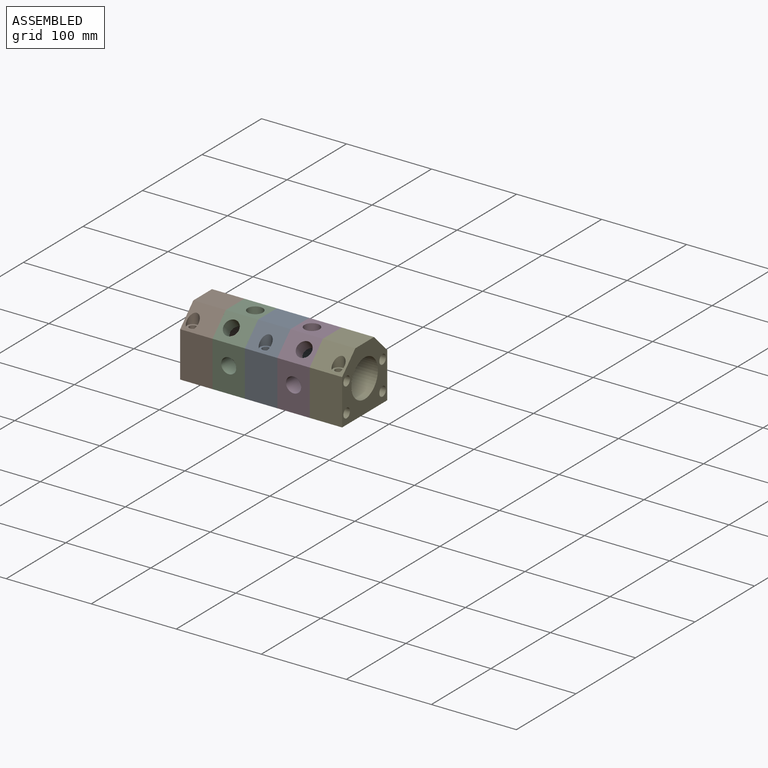
[diagram: assembled view]
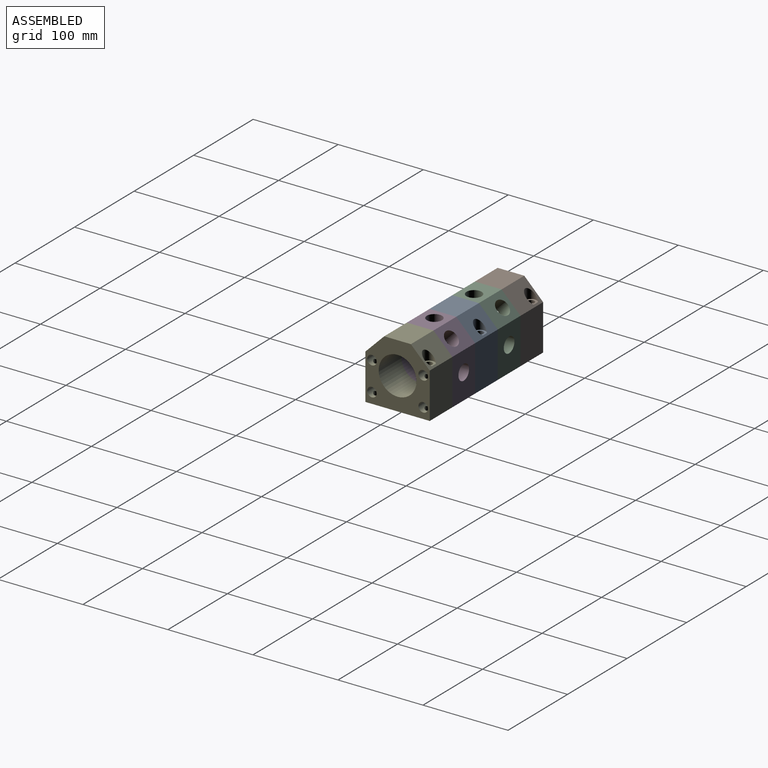
[diagram: assembled view, second angle]
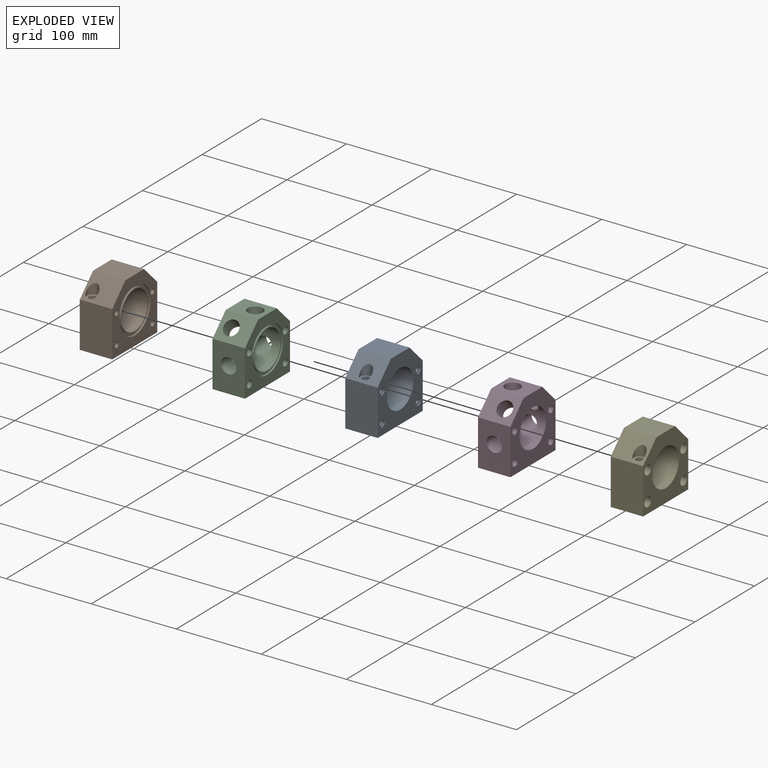
[diagram: exploded view]
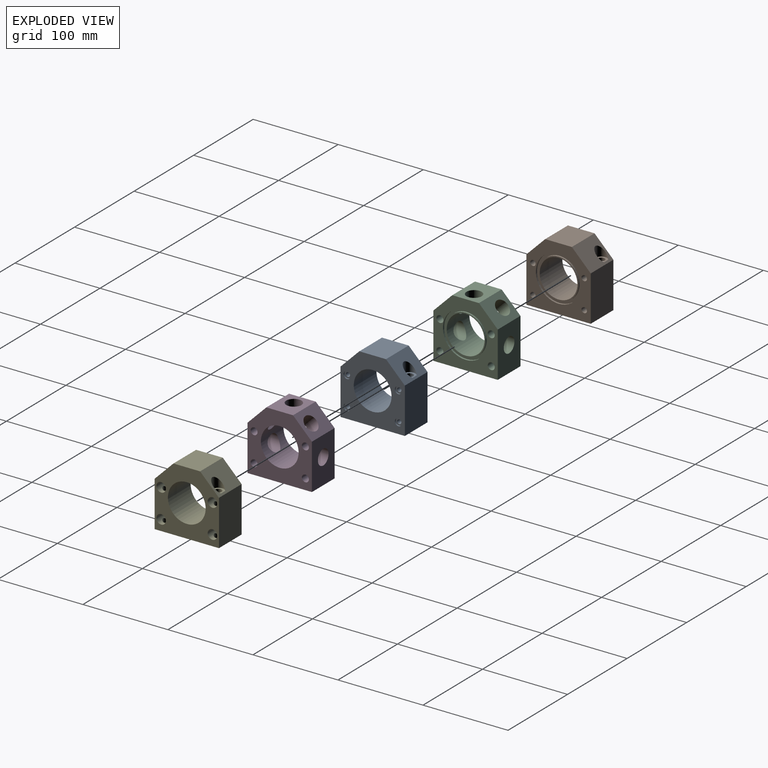
[diagram: exploded view, second angle]
ASSEMBLY  parts=5 mates=4
PART A: 39 faces, bbox 38.1x75.7x75.7 mm
  f0: cylinder r=2.5mm len=14.07mm, axis (1,0,0), area 214.3mm2, adj f17,f33
  f1: cylinder r=2.5mm len=14.07mm, axis (1,0,0), area 214.3mm2, adj f19,f36
  f2: cylinder r=2.5mm len=14.07mm, axis (1,0,0), area 214.3mm2, adj f21,f36
  f3: cylinder r=2.5mm len=14.07mm, axis (1,0,0), area 214.3mm2, adj f23,f33
  f4: cylinder r=2.5mm len=14.07mm, axis (-1,0,0), area 214.3mm2, adj f25,f36
  f5: cylinder r=2.5mm len=14.07mm, axis (-1,0,0), area 214.3mm2, adj f27,f36
  f6: cylinder r=2.5mm len=14.07mm, axis (-1,0,0), area 214.3mm2, adj f29,f33
  f7: cylinder r=2.5mm len=14.07mm, axis (-1,0,0), area 214.3mm2, adj f31,f33
  f8: plane 38.1x31.35mm, normal (0,0,1), area 1194.5mm2, adj f9,f13,f15,f16
  f9: plane 38.1x22.17mm, normal (0,-0.71,0.71), area 998.2mm2, adj f8,f10,f15,f16,f34,f35
  f10: plane 53.52x38.1mm, normal (0,-1,0), area 2039.2mm2, adj f9,f11,f15,f16
  f11: plane 75.69x38.1mm, normal (0,0,-1), area 2772.2mm2, adj f10,f12,f15,f16,f33,f36
  f12: plane 53.52x38.1mm, normal (0,1,0), area 2039.2mm2, adj f11,f13,f15,f16
  f13: plane 38.1x22.17mm, normal (0,0.71,0.71), area 998.2mm2, adj f8,f12,f15,f16,f37,f38
  f14: cylinder r=22.23mm len=44.45mm, axis (-1,0,0), area 5320.4mm2, adj f15,f16
  f15: plane 75.69x75.69mm, normal (1,0,0), area 3474.5mm2, adj f8,f9,f10,f11,f12,f13,f14,f18
  f16: plane 75.69x75.69mm, normal (-1,0,0), area 3474.5mm2, adj f8,f9,f10,f11,f12,f13,f14,f26
  f17: plane 8.2x8.2mm, normal (1,0,0), area 33.2mm2, adj f0,f18
  f18: cylinder r=4.1mm len=8.2mm, axis (1,0,0), area 40.9mm2, adj f15,f17
  f19: plane 8.2x8.2mm, normal (1,0,0), area 33.2mm2, adj f1,f20
  f20: cylinder r=4.1mm len=8.2mm, axis (1,0,0), area 40.9mm2, adj f15,f19
  f21: plane 8.2x8.2mm, normal (1,0,0), area 33.2mm2, adj f2,f22
  f22: cylinder r=4.1mm len=8.2mm, axis (1,0,0), area 40.9mm2, adj f15,f21
  f23: plane 8.2x8.2mm, normal (1,0,0), area 33.2mm2, adj f3,f24
  f24: cylinder r=4.1mm len=8.2mm, axis (1,0,0), area 40.9mm2, adj f15,f23
  f25: plane 8.2x8.2mm, normal (-1,0,0), area 33.2mm2, adj f4,f26
  f26: cylinder r=4.1mm len=8.2mm, axis (-1,0,0), area 40.9mm2, adj f16,f25
  f27: plane 8.2x8.2mm, normal (-1,0,0), area 33.2mm2, adj f5,f28
  f28: cylinder r=4.1mm len=8.2mm, axis (-1,0,0), area 40.9mm2, adj f16,f27
  f29: plane 8.2x8.2mm, normal (-1,0,0), area 33.2mm2, adj f6,f30
  f30: cylinder r=4.1mm len=8.2mm, axis (-1,0,0), area 40.9mm2, adj f16,f29
  f31: plane 8.2x8.2mm, normal (-1,0,0), area 33.2mm2, adj f7,f32
  f32: cylinder r=4.1mm len=8.2mm, axis (-1,0,0), area 40.9mm2, adj f16,f31
  f33: cylinder r=4.22mm len=55.37mm, axis (0,0,1), area 1384.5mm2, adj f0,f3,f6,f7,f11,f34
  f34: plane 13.49x12.58mm, normal (0,0,1), area 83mm2, adj f9,f33,f35
  f35: cylinder r=6.75mm len=13.49mm, axis (0,0,1), area 251.6mm2, adj f9,f34
  f36: cylinder r=4.22mm len=55.37mm, axis (0,0,1), area 1384.5mm2, adj f1,f2,f4,f5,f11,f37
  f37: plane 13.49x12.58mm, normal (0,0,1), area 83mm2, adj f13,f36,f38
  f38: cylinder r=6.75mm len=13.49mm, axis (0,0,1), area 251.6mm2, adj f13,f37
PART B: 35 faces, bbox 38.1x75.7x75.7 mm
  f0: cylinder r=5.56mm len=25.4mm, axis (-1,0,0), area 764.4mm2, adj f13,f15,f26,f32
  f1: cylinder r=5.56mm len=25.4mm, axis (-1,0,0), area 764.4mm2, adj f13,f17,f28,f29
  f2: cylinder r=5.56mm len=25.4mm, axis (-1,0,0), area 764.4mm2, adj f13,f19,f27,f28
  f3: cylinder r=5.56mm len=25.4mm, axis (-1,0,0), area 764.4mm2, adj f13,f21,f25,f26
  f4: plane 46.99x46.99mm, normal (1,0,0), area 182.4mm2, adj f11,f22
  f5: plane 38.1x31.35mm, normal (0,0,1), area 1194.5mm2, adj f6,f10,f12,f13
  f6: plane 38.1x22.17mm, normal (0,-0.71,0.71), area 998.2mm2, adj f5,f7,f12,f13,f30,f31
  f7: plane 53.52x38.1mm, normal (0,-1,0), area 2039.2mm2, adj f6,f8,f12,f13
  f8: plane 75.69x38.1mm, normal (0,0,-1), area 2772.2mm2, adj f7,f9,f12,f13,f25,f27
  f9: plane 53.52x38.1mm, normal (0,1,0), area 2039.2mm2, adj f8,f10,f12,f13
  f10: plane 38.1x22.17mm, normal (0,0.71,0.71), area 998.2mm2, adj f5,f9,f12,f13,f33,f34
  f11: cylinder r=22.23mm len=44.45mm, axis (-1,0,0), area 5320.4mm2, adj f4,f13
  f12: plane 75.69x75.69mm, normal (1,0,0), area 2876.5mm2, adj f5,f6,f7,f8,f9,f10,f14,f16
  f13: plane 75.69x75.69mm, normal (-1,0,0), area 3298mm2, adj f0,f1,f2,f3,f5,f6,f7,f8
  f14: cylinder r=3.17mm len=12.7mm, axis (-1,0,0), area 253.4mm2, adj f12,f15
  f15: plane 11.11x11.11mm, normal (-1,0,0), area 65.3mm2, adj f0,f14
  f16: cylinder r=3.17mm len=12.7mm, axis (-1,0,0), area 253.4mm2, adj f12,f17
  f17: plane 11.11x11.11mm, normal (-1,0,0), area 65.3mm2, adj f1,f16
  f18: cylinder r=3.17mm len=12.7mm, axis (-1,0,0), area 253.4mm2, adj f12,f19
  f19: plane 11.11x11.11mm, normal (-1,0,0), area 65.3mm2, adj f2,f18
  f20: cylinder r=3.17mm len=12.7mm, axis (-1,0,0), area 253.4mm2, adj f12,f21
  f21: plane 11.11x11.11mm, normal (-1,0,0), area 65.3mm2, adj f3,f20
  f22: cylinder r=23.49mm len=46.99mm, axis (1,0,0), area 300mm2, adj f4,f24
  f23: cylinder r=26.67mm len=53.34mm, axis (1,0,0), area 340.5mm2, adj f12,f24
  f24: plane 53.34x53.34mm, normal (1,0,0), area 500.4mm2, adj f22,f23
  f25: cylinder r=4.22mm len=8.83mm, axis (0,0,1), area 206.9mm2, adj f3,f8
  f26: cylinder r=4.22mm len=26.8mm, axis (0,0,1), area 655.9mm2, adj f0,f3
  f27: cylinder r=4.22mm len=8.83mm, axis (0,0,1), area 206.9mm2, adj f2,f8
  f28: cylinder r=4.22mm len=26.8mm, axis (0,0,1), area 655.9mm2, adj f1,f2
  f29: cylinder r=4.22mm len=8.43mm, axis (0,0,1), area 112.6mm2, adj f1,f30
  f30: plane 13.49x12.58mm, normal (0,0,1), area 83mm2, adj f6,f29,f31
  f31: cylinder r=6.75mm len=13.49mm, axis (0,0,1), area 251.6mm2, adj f6,f30
  f32: cylinder r=4.22mm len=8.43mm, axis (0,0,1), area 112.6mm2, adj f0,f33
  f33: plane 13.49x12.58mm, normal (0,0,1), area 83mm2, adj f10,f32,f34
  f34: cylinder r=6.75mm len=13.49mm, axis (0,0,1), area 251.6mm2, adj f10,f33
PART C: 22 faces, bbox 38.1x75.7x75.7 mm
  f0: cylinder r=22.23mm len=44.45mm, axis (-1,0,0), area 3995.4mm2, adj f1,f9,f17,f18,f19,f20,f21
  f1: plane 46.99x46.99mm, normal (1,0,0), area 182.4mm2, adj f0,f14
  f2: plane 38.1x31.35mm, normal (0,0,1), area 944.1mm2, adj f3,f7,f8,f9,f18
  f3: plane 38.1x22.17mm, normal (0,-0.71,0.71), area 944.1mm2, adj f2,f4,f8,f9,f19
  f4: plane 53.52x38.1mm, normal (0,-1,0), area 1788.8mm2, adj f3,f5,f8,f9,f20
  f5: plane 75.69x38.1mm, normal (0,0,-1), area 2883.9mm2, adj f4,f6,f8,f9
  f6: plane 53.52x38.1mm, normal (0,1,0), area 1788.8mm2, adj f5,f7,f8,f9,f21
  f7: plane 38.1x22.17mm, normal (0,0.71,0.71), area 944.1mm2, adj f2,f6,f8,f9,f17
  f8: plane 75.69x75.69mm, normal (1,0,0), area 2791.7mm2, adj f2,f3,f4,f5,f6,f7,f10,f11
  f9: plane 75.69x75.69mm, normal (-1,0,0), area 3474.5mm2, adj f0,f2,f3,f4,f5,f6,f7,f10
  f10: cylinder r=4.1mm len=38.1mm, axis (1,0,0), area 982mm2, adj f8,f9
  f11: cylinder r=4.1mm len=38.1mm, axis (1,0,0), area 982mm2, adj f8,f9
  f12: cylinder r=4.1mm len=38.1mm, axis (1,0,0), area 982mm2, adj f8,f9
  f13: cylinder r=4.1mm len=38.1mm, axis (1,0,0), area 982mm2, adj f8,f9
  f14: cylinder r=23.49mm len=46.99mm, axis (1,0,0), area 300mm2, adj f1,f16
  f15: cylinder r=26.67mm len=53.34mm, axis (1,0,0), area 340.5mm2, adj f8,f16
  f16: plane 53.34x53.34mm, normal (1,0,0), area 500.4mm2, adj f14,f15
  f17: cylinder r=8.93mm len=25mm, axis (0,0.71,0.71), area 928.3mm2, adj f0,f7
  f18: cylinder r=8.93mm len=17.86mm, axis (0,0,1), area 928.2mm2, adj f0,f2
  f19: cylinder r=8.93mm len=25mm, axis (0,-0.71,0.71), area 928.3mm2, adj f0,f3
  f20: cylinder r=8.93mm len=23.37mm, axis (0,-1,0), area 1024.6mm2, adj f0,f4
  f21: cylinder r=8.93mm len=23.37mm, axis (0,-1,0), area 1024.8mm2, adj f0,f6
PART D: same geometry as C
PART E: same geometry as B
PLACE A t=(76.2,0,0)mm
PLACE B at identity fixed
PLACE C t=(38.1,0,0)mm
PLACE D rot(axis=(0,0,1),180deg) t=(114.3,0,0)mm
PLACE E rot(axis=(0,0,1),180deg) t=(152.4,0,0)mm
MATE fastened A.f14 <-> C.f0  axis (-1,0,0) through (57.15,0,0)mm
MATE fastened D.f0 <-> A.f14  axis (-1,0,0) through (95.25,0,0)mm
MATE fastened C.f0 <-> B.f11  axis (-1,0,0) through (19.05,0,0)mm
MATE fastened E.f11 <-> D.f0  axis (-1,0,0) through (133.35,0,0)mm
